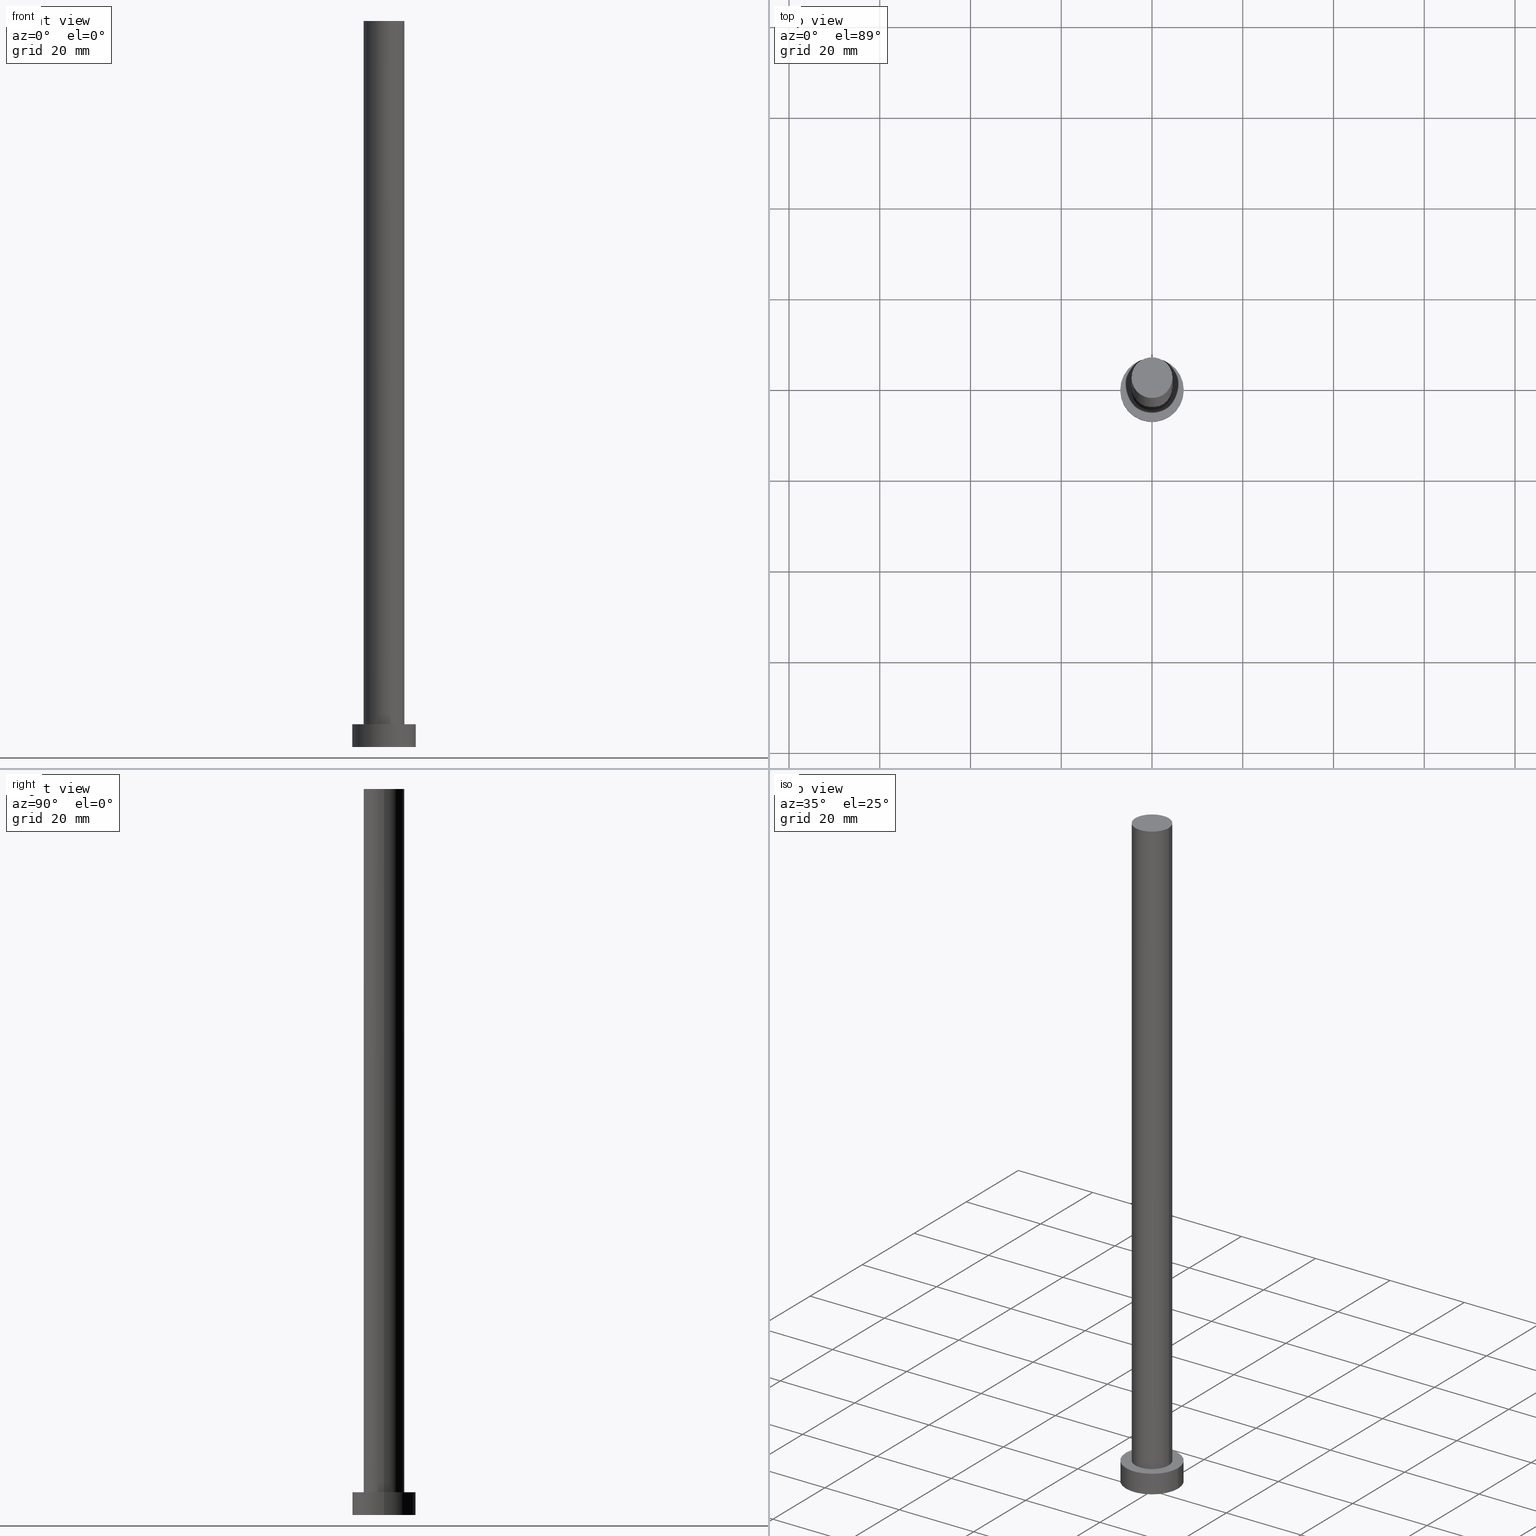
[diagram: canonical four-view strip — front | top / right | iso, engineering-drawing reading convention]
A machine part, canonical four-view strip (front | top / right | iso — engineering-drawing reading convention). The complete STEP part file that produces these views, byte-faithful:
ISO-10303-21;
HEADER;
FILE_DESCRIPTION (( 'STEP AP203' ),
    '1' );
FILE_NAME ('4b78.STEP',
    '2023-02-13T10:51:04',
    ( '' ),
    ( '' ),
    'SwSTEP 2.0',
    'SolidWorks 2019',
    '' );
FILE_SCHEMA (( 'CONFIG_CONTROL_DESIGN' ));
ENDSEC;

DATA;
#1 = CIRCLE ( 'NONE', #120, 7.000000000000000000 ) ;
#2 = VERTEX_POINT ( 'NONE', #113 ) ;
#3 = DIRECTION ( 'NONE',  ( 1.000000000000000000, 0.000000000000000000, -0.000000000000000000 ) ) ;
#4 = AXIS2_PLACEMENT_3D ( 'NONE', #136, #133, #171 ) ;
#5 = ORIENTED_EDGE ( 'NONE', *, *, #195, .T. ) ;
#6 = APPROVAL ( #114, 'NEUR�EN�' ) ;
#7 = DIRECTION ( 'NONE',  ( -0.000000000000000000, -0.000000000000000000, -1.000000000000000000 ) ) ;
#8 = EDGE_CURVE ( 'NONE', #94, #90, #1, .T. ) ;
#9 = FACE_OUTER_BOUND ( 'NONE', #236, .T. ) ;
#10 = AXIS2_PLACEMENT_3D ( 'NONE', #111, #164, #230 ) ;
#11 = CYLINDRICAL_SURFACE ( 'NONE', #232, 4.500000000000000888 ) ;
#12 = DIRECTION ( 'NONE',  ( -0.000000000000000000, -0.000000000000000000, -1.000000000000000000 ) ) ;
#13 = ORIENTED_EDGE ( 'NONE', *, *, #195, .F. ) ;
#14 = CARTESIAN_POINT ( 'NONE',  ( -7.000000000000000000, 0.000000000000000000, 0.000000000000000000 ) ) ;
#15 = ORIENTED_EDGE ( 'NONE', *, *, #72, .T. ) ;
#16 = COORDINATED_UNIVERSAL_TIME_OFFSET ( 1, 0, .AHEAD. ) ;
#17 = PERSON_AND_ORGANIZATION ( #65, #196 ) ;
#18 = APPROVAL_DATE_TIME ( #82, #149 ) ;
#19 = APPROVAL_STATUS ( 'not_yet_approved' ) ;
#20 = APPLICATION_CONTEXT ( 'configuration controlled 3d designs of mechanical parts and assemblies' ) ;
#21 = CC_DESIGN_PERSON_AND_ORGANIZATION_ASSIGNMENT ( #80, #39, ( #92 ) ) ;
#22 = DATE_AND_TIME ( #168, #124 ) ;
#23 = CIRCLE ( 'NONE', #158, 7.000000000000000000 ) ;
#24 = DIRECTION ( 'NONE',  ( 0.000000000000000000, 0.000000000000000000, 1.000000000000000000 ) ) ;
#25 = ADVANCED_FACE ( 'NONE', ( #206 ), #77, .T. ) ;
#26 = VERTEX_POINT ( 'NONE', #159 ) ;
#27 = CARTESIAN_POINT ( 'NONE',  ( 0.000000000000000000, 0.000000000000000000, 160.0000000000000000 ) ) ;
#28 = ORIENTED_EDGE ( 'NONE', *, *, #154, .F. ) ;
#29 = DIRECTION ( 'NONE',  ( 0.000000000000000000, 0.000000000000000000, 1.000000000000000000 ) ) ;
#30 = CIRCLE ( 'NONE', #163, 7.000000000000000000 ) ;
#31 = FACE_OUTER_BOUND ( 'NONE', #243, .T. ) ;
#32 = CARTESIAN_POINT ( 'NONE',  ( -4.500000000000000888, 0.000000000000000000, 160.0000000000000000 ) ) ;
#33 = CARTESIAN_POINT ( 'NONE',  ( 0.000000000000000000, 0.000000000000000000, 160.0000000000000000 ) ) ;
#34 = APPROVAL_DATE_TIME ( #209, #6 ) ;
#35 = CC_DESIGN_PERSON_AND_ORGANIZATION_ASSIGNMENT ( #58, #255, ( #115 ) ) ;
#36 = ADVANCED_FACE ( 'NONE', ( #31 ), #130, .T. ) ;
#37 = DATE_TIME_ROLE ( 'creation_date' ) ;
#38 = AXIS2_PLACEMENT_3D ( 'NONE', #74, #229, #227 ) ;
#39 = PERSON_AND_ORGANIZATION_ROLE ( 'creator' ) ;
#40 = APPROVAL_PERSON_ORGANIZATION ( #212, #6, #185 ) ;
#41 = DATE_AND_TIME ( #190, #189 ) ;
#42 = COORDINATED_UNIVERSAL_TIME_OFFSET ( 1, 0, .AHEAD. ) ;
#43 = DIRECTION ( 'NONE',  ( -0.000000000000000000, -0.000000000000000000, -1.000000000000000000 ) ) ;
#44 = PRODUCT_DEFINITION ( 'NEZN�M�', '', #92, #238 ) ;
#45 = AXIS2_PLACEMENT_3D ( 'NONE', #33, #141, #127 ) ;
#46 =( GEOMETRIC_REPRESENTATION_CONTEXT ( 3 ) GLOBAL_UNCERTAINTY_ASSIGNED_CONTEXT ( ( #176 ) ) GLOBAL_UNIT_ASSIGNED_CONTEXT ( ( #192, #241, #84 ) ) REPRESENTATION_CONTEXT ( 'NONE', 'WORKASPACE' ) );
#47 = EDGE_LOOP ( 'NONE', ( #28, #251 ) ) ;
#48 = LINE ( 'NONE', #157, #107 ) ;
#49 = CARTESIAN_POINT ( 'NONE',  ( 7.000000000000000000, 8.572527594031473190E-16, 0.000000000000000000 ) ) ;
#50 = APPROVAL ( #147, 'NEUR�EN�' ) ;
#51 = APPLICATION_PROTOCOL_DEFINITION ( 'international standard', 'config_control_design', 1994, #132 ) ;
#52 = DIRECTION ( 'NONE',  ( -1.000000000000000000, 0.000000000000000000, 0.000000000000000000 ) ) ;
#53 = DIRECTION ( 'NONE',  ( 0.000000000000000000, 0.000000000000000000, 1.000000000000000000 ) ) ;
#54 = ORIENTED_EDGE ( 'NONE', *, *, #108, .F. ) ;
#55 = EDGE_CURVE ( 'NONE', #94, #172, #211, .T. ) ;
#56 = ORIENTED_EDGE ( 'NONE', *, *, #223, .T. ) ;
#57 = APPROVAL_PERSON_ORGANIZATION ( #17, #149, #96 ) ;
#58 = PERSON_AND_ORGANIZATION ( #65, #196 ) ;
#59 = DATE_TIME_ROLE ( 'classification_date' ) ;
#60 = ORIENTED_EDGE ( 'NONE', *, *, #72, .F. ) ;
#61 = EDGE_CURVE ( 'NONE', #2, #118, #173, .T. ) ;
#62 = EDGE_LOOP ( 'NONE', ( #54, #129, #166, #109 ) ) ;
#63 = AXIS2_PLACEMENT_3D ( 'NONE', #91, #71, #52 ) ;
#64 = PLANE ( 'NONE',  #101 ) ;
#65 = PERSON ( 'NEUR�EN�', 'NEUR�EN�', 'NEUR�EN�', ('NEUR�EN�'), ('NEUR�EN�'), ('NEUR�EN�') ) ;
#66 = ORIENTED_EDGE ( 'NONE', *, *, #205, .F. ) ;
#67 = AXIS2_PLACEMENT_3D ( 'NONE', #97, #140, #254 ) ;
#68 = CARTESIAN_POINT ( 'NONE',  ( 0.000000000000000000, 0.000000000000000000, 5.000000000000000000 ) ) ;
#69 = CC_DESIGN_APPROVAL ( #149, ( #92 ) ) ;
#70 = EDGE_LOOP ( 'NONE', ( #187, #219 ) ) ;
#71 = DIRECTION ( 'NONE',  ( -0.000000000000000000, -0.000000000000000000, -1.000000000000000000 ) ) ;
#72 = EDGE_CURVE ( 'NONE', #155, #26, #214, .T. ) ;
#73 = DIRECTION ( 'NONE',  ( -0.000000000000000000, -0.000000000000000000, -1.000000000000000000 ) ) ;
#74 = CARTESIAN_POINT ( 'NONE',  ( 0.000000000000000000, 0.000000000000000000, 5.000000000000000000 ) ) ;
#75 = VECTOR ( 'NONE', #12, 1000.000000000000000 ) ;
#76 = LOCAL_TIME ( 11, 51, 4.000000000000000000, #16 ) ;
#77 = PLANE ( 'NONE',  #135 ) ;
#78 = CARTESIAN_POINT ( 'NONE',  ( 0.000000000000000000, 0.000000000000000000, 0.000000000000000000 ) ) ;
#79 = ADVANCED_FACE ( 'NONE', ( #250 ), #183, .T. ) ;
#80 = PERSON_AND_ORGANIZATION ( #65, #196 ) ;
#81 = CIRCLE ( 'NONE', #207, 4.500000000000000888 ) ;
#82 = DATE_AND_TIME ( #170, #85 ) ;
#83 = SECURITY_CLASSIFICATION_LEVEL ( 'unclassified' ) ;
#84 =( NAMED_UNIT ( * ) SI_UNIT ( $, .STERADIAN. ) SOLID_ANGLE_UNIT ( ) );
#85 = LOCAL_TIME ( 11, 51, 4.000000000000000000, #99 ) ;
#86 = DIRECTION ( 'NONE',  ( 1.000000000000000000, 0.000000000000000000, 0.000000000000000000 ) ) ;
#87 = MECHANICAL_CONTEXT ( 'NONE', #20, 'mechanical' ) ;
#88 = EDGE_LOOP ( 'NONE', ( #151, #234, #15, #13 ) ) ;
#89 = DIRECTION ( 'NONE',  ( 1.000000000000000000, 0.000000000000000000, 0.000000000000000000 ) ) ;
#90 = VERTEX_POINT ( 'NONE', #126 ) ;
#91 = CARTESIAN_POINT ( 'NONE',  ( 0.000000000000000000, 0.000000000000000000, 160.0000000000000000 ) ) ;
#92 = PRODUCT_DEFINITION_FORMATION_WITH_SPECIFIED_SOURCE ( 'LIBOVOLN�', '', #242, .NOT_KNOWN. ) ;
#93 = EDGE_CURVE ( 'NONE', #98, #172, #30, .T. ) ;
#94 = VERTEX_POINT ( 'NONE', #210 ) ;
#95 = CARTESIAN_POINT ( 'NONE',  ( 4.500000000000000888, 5.510910596163089556E-16, 160.0000000000000000 ) ) ;
#96 = APPROVAL_ROLE ( '' ) ;
#97 = CARTESIAN_POINT ( 'NONE',  ( 0.000000000000000000, 0.000000000000000000, 5.000000000000000000 ) ) ;
#98 = VERTEX_POINT ( 'NONE', #49 ) ;
#99 = COORDINATED_UNIVERSAL_TIME_OFFSET ( 1, 0, .AHEAD. ) ;
#100 = DATE_AND_TIME ( #117, #156 ) ;
#101 = AXIS2_PLACEMENT_3D ( 'NONE', #153, #216, #3 ) ;
#102 = EDGE_CURVE ( 'NONE', #118, #2, #239, .T. ) ;
#103 = CC_DESIGN_PERSON_AND_ORGANIZATION_ASSIGNMENT ( #137, #186, ( #242 ) ) ;
#104 = PLANE ( 'NONE',  #4 ) ;
#105 = APPROVAL_ROLE ( '' ) ;
#106 = DIRECTION ( 'NONE',  ( 0.000000000000000000, 0.000000000000000000, 1.000000000000000000 ) ) ;
#107 = VECTOR ( 'NONE', #7, 1000.000000000000000 ) ;
#108 = EDGE_CURVE ( 'NONE', #90, #98, #48, .T. ) ;
#109 = ORIENTED_EDGE ( 'NONE', *, *, #154, .T. ) ;
#110 = DIRECTION ( 'NONE',  ( 1.000000000000000000, 0.000000000000000000, 0.000000000000000000 ) ) ;
#111 = CARTESIAN_POINT ( 'NONE',  ( 0.000000000000000000, 0.000000000000000000, 5.000000000000000000 ) ) ;
#112 = DIRECTION ( 'NONE',  ( 1.000000000000000000, 0.000000000000000000, 0.000000000000000000 ) ) ;
#113 = CARTESIAN_POINT ( 'NONE',  ( -4.500000000000000888, 0.000000000000000000, 160.0000000000000000 ) ) ;
#114 = APPROVAL_STATUS ( 'not_yet_approved' ) ;
#115 = SECURITY_CLASSIFICATION ( '', '', #83 ) ;
#116 = CC_DESIGN_DATE_AND_TIME_ASSIGNMENT ( #41, #59, ( #115 ) ) ;
#117 = CALENDAR_DATE ( 2023, 13, 2 ) ;
#118 = VERTEX_POINT ( 'NONE', #244 ) ;
#119 = COORDINATED_UNIVERSAL_TIME_OFFSET ( 1, 0, .AHEAD. ) ;
#120 = AXIS2_PLACEMENT_3D ( 'NONE', #249, #139, #161 ) ;
#121 = CC_DESIGN_SECURITY_CLASSIFICATION ( #115, ( #92 ) ) ;
#122 = VECTOR ( 'NONE', #43, 1000.000000000000000 ) ;
#123 = CARTESIAN_POINT ( 'NONE',  ( 0.000000000000000000, 0.000000000000000000, 5.000000000000000000 ) ) ;
#124 = LOCAL_TIME ( 11, 51, 4.000000000000000000, #42 ) ;
#125 = DIRECTION ( 'NONE',  ( 0.000000000000000000, 0.000000000000000000, 1.000000000000000000 ) ) ;
#126 = CARTESIAN_POINT ( 'NONE',  ( 7.000000000000000000, 8.572527594031473190E-16, 5.000000000000000000 ) ) ;
#127 = DIRECTION ( 'NONE',  ( 1.000000000000000000, 0.000000000000000000, 0.000000000000000000 ) ) ;
#128 = LINE ( 'NONE', #95, #122 ) ;
#129 = ORIENTED_EDGE ( 'NONE', *, *, #8, .F. ) ;
#130 = CYLINDRICAL_SURFACE ( 'NONE', #38, 7.000000000000000000 ) ;
#131 = EDGE_CURVE ( 'NONE', #90, #94, #199, .T. ) ;
#132 = APPLICATION_CONTEXT ( 'configuration controlled 3d designs of mechanical parts and assemblies' ) ;
#133 = DIRECTION ( 'NONE',  ( 0.000000000000000000, 0.000000000000000000, 1.000000000000000000 ) ) ;
#134 = ORIENTED_EDGE ( 'NONE', *, *, #131, .F. ) ;
#135 = AXIS2_PLACEMENT_3D ( 'NONE', #144, #53, #208 ) ;
#136 = CARTESIAN_POINT ( 'NONE',  ( 0.000000000000000000, 0.000000000000000000, 0.000000000000000000 ) ) ;
#137 = PERSON_AND_ORGANIZATION ( #65, #196 ) ;
#138 = ORIENTED_EDGE ( 'NONE', *, *, #55, .F. ) ;
#139 = DIRECTION ( 'NONE',  ( 0.000000000000000000, 0.000000000000000000, 1.000000000000000000 ) ) ;
#140 = DIRECTION ( 'NONE',  ( -0.000000000000000000, -0.000000000000000000, -1.000000000000000000 ) ) ;
#141 = DIRECTION ( 'NONE',  ( 0.000000000000000000, 0.000000000000000000, 1.000000000000000000 ) ) ;
#142 = FACE_OUTER_BOUND ( 'NONE', #88, .T. ) ;
#143 = AXIS2_PLACEMENT_3D ( 'NONE', #203, #24, #110 ) ;
#144 = CARTESIAN_POINT ( 'NONE',  ( 0.000000000000000000, 0.000000000000000000, 160.0000000000000000 ) ) ;
#145 = CALENDAR_DATE ( 2023, 13, 2 ) ;
#146 = PERSON_AND_ORGANIZATION_ROLE ( 'creator' ) ;
#147 = APPROVAL_STATUS ( 'not_yet_approved' ) ;
#148 = PERSON_AND_ORGANIZATION_ROLE ( 'design_supplier' ) ;
#149 = APPROVAL ( #19, 'NEUR�EN�' ) ;
#150 = FACE_BOUND ( 'NONE', #237, .T. ) ;
#151 = ORIENTED_EDGE ( 'NONE', *, *, #102, .F. ) ;
#152 = EDGE_LOOP ( 'NONE', ( #220, #222 ) ) ;
#153 = CARTESIAN_POINT ( 'NONE',  ( 0.000000000000000000, 0.000000000000000000, 5.000000000000000000 ) ) ;
#154 = EDGE_CURVE ( 'NONE', #172, #98, #23, .T. ) ;
#155 = VERTEX_POINT ( 'NONE', #201 ) ;
#156 = LOCAL_TIME ( 11, 51, 4.000000000000000000, #233 ) ;
#157 = CARTESIAN_POINT ( 'NONE',  ( 7.000000000000000000, 8.572527594031473190E-16, 5.000000000000000000 ) ) ;
#158 = AXIS2_PLACEMENT_3D ( 'NONE', #221, #29, #112 ) ;
#159 = CARTESIAN_POINT ( 'NONE',  ( -4.500000000000000888, 0.000000000000000000, 5.000000000000000000 ) ) ;
#160 = CYLINDRICAL_SURFACE ( 'NONE', #63, 4.500000000000000888 ) ;
#161 = DIRECTION ( 'NONE',  ( 1.000000000000000000, 0.000000000000000000, 0.000000000000000000 ) ) ;
#162 = DIRECTION ( 'NONE',  ( 0.000000000000000000, 0.000000000000000000, 1.000000000000000000 ) ) ;
#163 = AXIS2_PLACEMENT_3D ( 'NONE', #78, #125, #89 ) ;
#164 = DIRECTION ( 'NONE',  ( 0.000000000000000000, 0.000000000000000000, 1.000000000000000000 ) ) ;
#165 = MANIFOLD_SOLID_BREP ( 'P�idat vysunut�m3', #231 ) ;
#166 = ORIENTED_EDGE ( 'NONE', *, *, #55, .T. ) ;
#167 = AXIS2_PLACEMENT_3D ( 'NONE', #200, #204, #181 ) ;
#168 = CALENDAR_DATE ( 2023, 13, 2 ) ;
#169 = VECTOR ( 'NONE', #73, 1000.000000000000000 ) ;
#170 = CALENDAR_DATE ( 2023, 13, 2 ) ;
#171 = DIRECTION ( 'NONE',  ( 1.000000000000000000, 0.000000000000000000, -0.000000000000000000 ) ) ;
#172 = VERTEX_POINT ( 'NONE', #14 ) ;
#173 = CIRCLE ( 'NONE', #45, 4.500000000000000888 ) ;
#174 = ORIENTED_EDGE ( 'NONE', *, *, #61, .F. ) ;
#175 = ADVANCED_FACE ( 'NONE', ( #9 ), #11, .T. ) ;
#176 = UNCERTAINTY_MEASURE_WITH_UNIT (LENGTH_MEASURE( 1.000000000000000082E-05 ), #192, 'distance_accuracy_value', 'NONE');
#177 = FACE_OUTER_BOUND ( 'NONE', #47, .T. ) ;
#178 = APPROVAL_PERSON_ORGANIZATION ( #188, #50, #105 ) ;
#179 = PRODUCT_DEFINITION_SHAPE ( 'NONE', 'NONE',  #44 ) ;
#180 = ORIENTED_EDGE ( 'NONE', *, *, #108, .T. ) ;
#181 = DIRECTION ( 'NONE',  ( 1.000000000000000000, 0.000000000000000000, 0.000000000000000000 ) ) ;
#182 = PERSON_AND_ORGANIZATION ( #65, #196 ) ;
#183 = CYLINDRICAL_SURFACE ( 'NONE', #67, 7.000000000000000000 ) ;
#184 = AXIS2_PLACEMENT_3D ( 'NONE', #68, #162, #228 ) ;
#185 = APPROVAL_ROLE ( '' ) ;
#186 = PERSON_AND_ORGANIZATION_ROLE ( 'design_owner' ) ;
#187 = ORIENTED_EDGE ( 'NONE', *, *, #61, .T. ) ;
#188 = PERSON_AND_ORGANIZATION ( #65, #196 ) ;
#189 = LOCAL_TIME ( 11, 51, 4.000000000000000000, #119 ) ;
#190 = CALENDAR_DATE ( 2023, 13, 2 ) ;
#191 = PERSON_AND_ORGANIZATION ( #65, #196 ) ;
#192 =( LENGTH_UNIT ( ) NAMED_UNIT ( * ) SI_UNIT ( .MILLI., .METRE. ) );
#193 = SHAPE_DEFINITION_REPRESENTATION ( #179, #218 ) ;
#194 = ADVANCED_FACE ( 'NONE', ( #142 ), #160, .T. ) ;
#195 = EDGE_CURVE ( 'NONE', #2, #26, #248, .T. ) ;
#196 = ORGANIZATION ( 'NEUR�EN�', 'NEUR�EN�', '' ) ;
#197 = APPLICATION_PROTOCOL_DEFINITION ( 'international standard', 'config_control_design', 1994, #20 ) ;
#198 = CC_DESIGN_DATE_AND_TIME_ASSIGNMENT ( #100, #37, ( #44 ) ) ;
#199 = CIRCLE ( 'NONE', #184, 7.000000000000000000 ) ;
#200 = CARTESIAN_POINT ( 'NONE',  ( 0.000000000000000000, 0.000000000000000000, 160.0000000000000000 ) ) ;
#201 = CARTESIAN_POINT ( 'NONE',  ( 4.500000000000000888, 5.510910596163089556E-16, 5.000000000000000000 ) ) ;
#202 = ORIENTED_EDGE ( 'NONE', *, *, #223, .F. ) ;
#203 = CARTESIAN_POINT ( 'NONE',  ( 0.000000000000000000, 0.000000000000000000, 0.000000000000000000 ) ) ;
#204 = DIRECTION ( 'NONE',  ( 0.000000000000000000, 0.000000000000000000, 1.000000000000000000 ) ) ;
#205 = EDGE_CURVE ( 'NONE', #118, #155, #128, .T. ) ;
#206 = FACE_OUTER_BOUND ( 'NONE', #70, .T. ) ;
#207 = AXIS2_PLACEMENT_3D ( 'NONE', #123, #106, #86 ) ;
#208 = DIRECTION ( 'NONE',  ( 1.000000000000000000, 0.000000000000000000, -0.000000000000000000 ) ) ;
#209 = DATE_AND_TIME ( #145, #76 ) ;
#210 = CARTESIAN_POINT ( 'NONE',  ( -7.000000000000000000, 0.000000000000000000, 5.000000000000000000 ) ) ;
#211 = LINE ( 'NONE', #225, #75 ) ;
#212 = PERSON_AND_ORGANIZATION ( #65, #196 ) ;
#213 = APPROVAL_DATE_TIME ( #22, #50 ) ;
#214 = CIRCLE ( 'NONE', #10, 4.500000000000000888 ) ;
#215 = CC_DESIGN_APPROVAL ( #50, ( #115 ) ) ;
#216 = DIRECTION ( 'NONE',  ( 0.000000000000000000, 0.000000000000000000, 1.000000000000000000 ) ) ;
#217 = CC_DESIGN_PERSON_AND_ORGANIZATION_ASSIGNMENT ( #191, #148, ( #92 ) ) ;
#218 = ADVANCED_BREP_SHAPE_REPRESENTATION ( '4b78', ( #165, #143 ), #46 ) ;
#219 = ORIENTED_EDGE ( 'NONE', *, *, #102, .T. ) ;
#220 = ORIENTED_EDGE ( 'NONE', *, *, #8, .T. ) ;
#221 = CARTESIAN_POINT ( 'NONE',  ( 0.000000000000000000, 0.000000000000000000, 0.000000000000000000 ) ) ;
#222 = ORIENTED_EDGE ( 'NONE', *, *, #131, .T. ) ;
#223 = EDGE_CURVE ( 'NONE', #26, #155, #81, .T. ) ;
#224 = ADVANCED_FACE ( 'NONE', ( #177 ), #104, .F. ) ;
#225 = CARTESIAN_POINT ( 'NONE',  ( -7.000000000000000000, 0.000000000000000000, 5.000000000000000000 ) ) ;
#226 = DIRECTION ( 'NONE',  ( -1.000000000000000000, 0.000000000000000000, 0.000000000000000000 ) ) ;
#227 = DIRECTION ( 'NONE',  ( -1.000000000000000000, 0.000000000000000000, 0.000000000000000000 ) ) ;
#228 = DIRECTION ( 'NONE',  ( 1.000000000000000000, 0.000000000000000000, 0.000000000000000000 ) ) ;
#229 = DIRECTION ( 'NONE',  ( -0.000000000000000000, -0.000000000000000000, -1.000000000000000000 ) ) ;
#230 = DIRECTION ( 'NONE',  ( 1.000000000000000000, 0.000000000000000000, 0.000000000000000000 ) ) ;
#231 = CLOSED_SHELL ( 'NONE', ( #194, #36, #79, #245, #224, #175, #25 ) ) ;
#232 = AXIS2_PLACEMENT_3D ( 'NONE', #27, #247, #226 ) ;
#233 = COORDINATED_UNIVERSAL_TIME_OFFSET ( 1, 0, .AHEAD. ) ;
#234 = ORIENTED_EDGE ( 'NONE', *, *, #205, .T. ) ;
#235 = FACE_OUTER_BOUND ( 'NONE', #152, .T. ) ;
#236 = EDGE_LOOP ( 'NONE', ( #66, #174, #5, #56 ) ) ;
#237 = EDGE_LOOP ( 'NONE', ( #202, #60 ) ) ;
#238 = DESIGN_CONTEXT ( 'detailed design', #132, 'design' ) ;
#239 = CIRCLE ( 'NONE', #167, 4.500000000000000888 ) ;
#240 = PRODUCT_RELATED_PRODUCT_CATEGORY ( 'detail', '', ( #242 ) ) ;
#241 =( NAMED_UNIT ( * ) PLANE_ANGLE_UNIT ( ) SI_UNIT ( $, .RADIAN. ) );
#242 = PRODUCT ( '4b78', '4b78', '', ( #87 ) ) ;
#243 = EDGE_LOOP ( 'NONE', ( #134, #180, #246, #138 ) ) ;
#244 = CARTESIAN_POINT ( 'NONE',  ( 4.500000000000000888, 5.510910596163089556E-16, 160.0000000000000000 ) ) ;
#245 = ADVANCED_FACE ( 'NONE', ( #150, #235 ), #64, .T. ) ;
#246 = ORIENTED_EDGE ( 'NONE', *, *, #93, .T. ) ;
#247 = DIRECTION ( 'NONE',  ( -0.000000000000000000, -0.000000000000000000, -1.000000000000000000 ) ) ;
#248 = LINE ( 'NONE', #32, #169 ) ;
#249 = CARTESIAN_POINT ( 'NONE',  ( 0.000000000000000000, 0.000000000000000000, 5.000000000000000000 ) ) ;
#250 = FACE_OUTER_BOUND ( 'NONE', #62, .T. ) ;
#251 = ORIENTED_EDGE ( 'NONE', *, *, #93, .F. ) ;
#252 = CC_DESIGN_APPROVAL ( #6, ( #44 ) ) ;
#253 = CC_DESIGN_PERSON_AND_ORGANIZATION_ASSIGNMENT ( #182, #146, ( #44 ) ) ;
#254 = DIRECTION ( 'NONE',  ( -1.000000000000000000, 0.000000000000000000, 0.000000000000000000 ) ) ;
#255 = PERSON_AND_ORGANIZATION_ROLE ( 'classification_officer' ) ;
ENDSEC;
END-ISO-10303-21;
